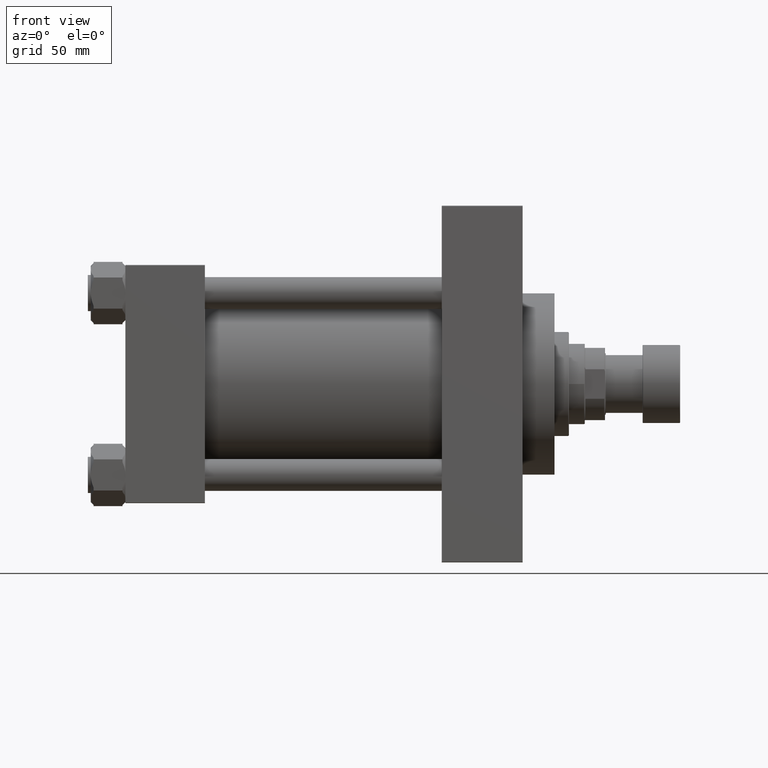
[diagram: clean part render]
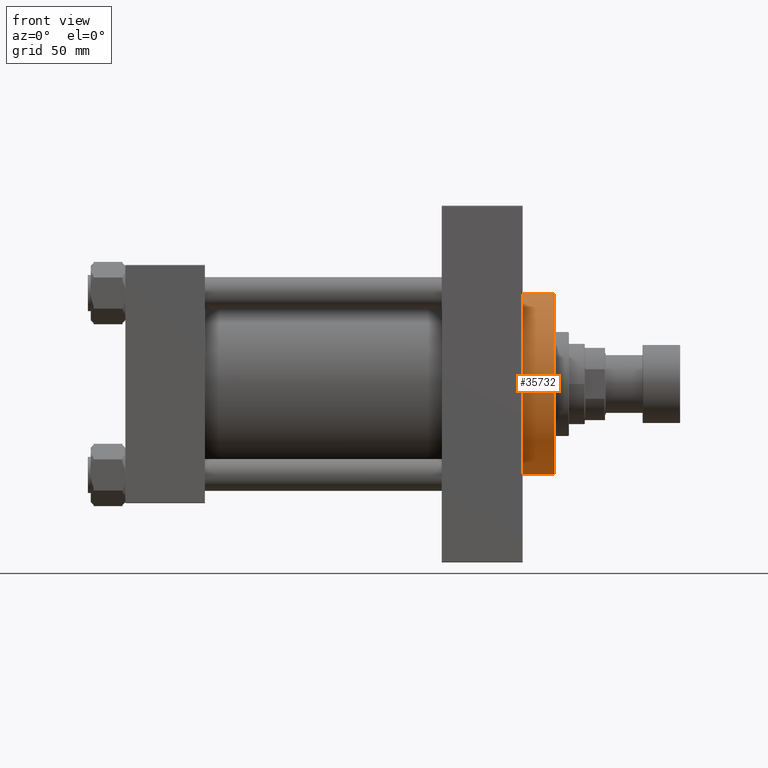
[diagram: same view with one face highlighted and labeled with its STEP entity id]
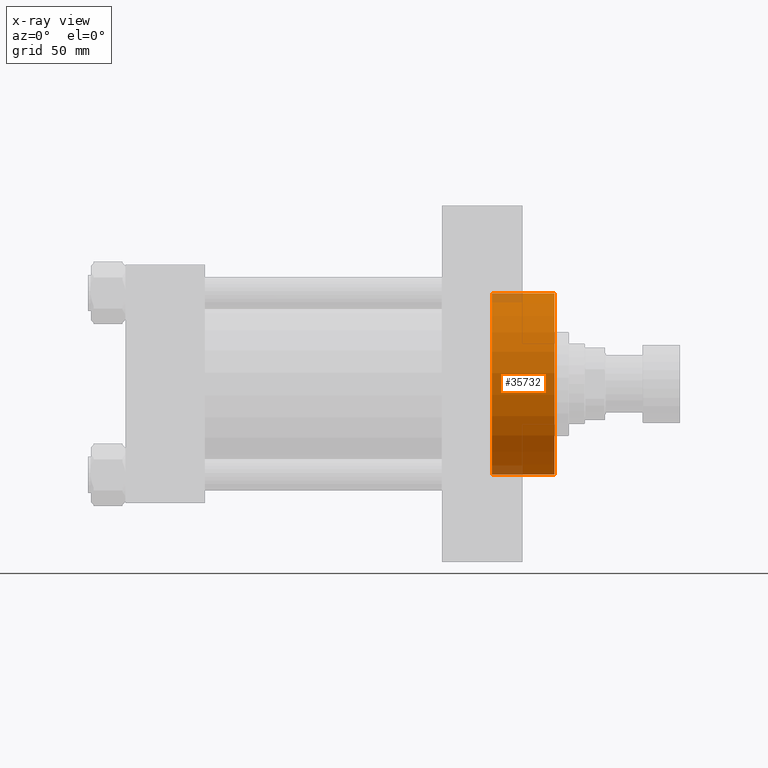
[diagram: x-ray of the same camera — body ghosted, the highlighted face saturated]
A machine part, front view. The second image highlights one B-rep face of the part: STEP entity #35732.
The next image is the same camera in x-ray: the body ghosted, the highlighted face saturated — about 5% of this face is hidden behind the body in this view.
In plain terms, the highlighted cylindrical surface (partial cylindrical patch) has radius 62.75 mm, axis along (-1, -0, 0).
Its self-contained STEP definition (entity closure, byte-faithful):
#2897 = VECTOR ( 'NONE', #15566, 1000.000000000000000 ) ;
#2991 = EDGE_CURVE ( 'NONE', #18063, #16553, #9720, .T. ) ;
#3689 = DIRECTION ( 'NONE',  ( 0.000000000000000000, 0.000000000000000000, 1.000000000000000000 ) ) ;
#4437 = VERTEX_POINT ( 'NONE', #39517 ) ;
#6716 = EDGE_LOOP ( 'NONE', ( #22117, #27790, #34641, #46777 ) ) ;
#9574 = DIRECTION ( 'NONE',  ( -1.000000000000000000, 0.000000000000000000, 0.000000000000000000 ) ) ;
#9720 = CIRCLE ( 'NONE', #40048, 62.75000000000000000 ) ;
#9830 = VERTEX_POINT ( 'NONE', #45409 ) ;
#10445 = DIRECTION ( 'NONE',  ( 0.000000000000000000, 0.000000000000000000, 1.000000000000000000 ) ) ;
#12680 = EDGE_CURVE ( 'NONE', #18063, #9830, #41615, .T. ) ;
#13712 = DIRECTION ( 'NONE',  ( -0.000000000000000000, -0.000000000000000000, -1.000000000000000000 ) ) ;
#14104 = CARTESIAN_POINT ( 'NONE',  ( -62.75000000000000000, 0.000000000000000000, 43.25999999999999801 ) ) ;
#14653 = CARTESIAN_POINT ( 'NONE',  ( 0.000000000000000000, 0.000000000000000000, 0.000000000000000000 ) ) ;
#15566 = DIRECTION ( 'NONE',  ( -0.000000000000000000, -0.000000000000000000, -1.000000000000000000 ) ) ;
#16553 = VERTEX_POINT ( 'NONE', #23264 ) ;
#18063 = VERTEX_POINT ( 'NONE', #14104 ) ;
#18547 = DIRECTION ( 'NONE',  ( 1.000000000000000000, 0.000000000000000000, 0.000000000000000000 ) ) ;
#19353 = FACE_OUTER_BOUND ( 'NONE', #6716, .T. ) ;
#20359 = LINE ( 'NONE', #46395, #47722 ) ;
#22117 = ORIENTED_EDGE ( 'NONE', *, *, #33623, .F. ) ;
#23264 = CARTESIAN_POINT ( 'NONE',  ( 62.75000000000000000, 7.684658664649641591E-15, 43.25999999999999801 ) ) ;
#25088 = CIRCLE ( 'NONE', #34397, 62.75000000000000000 ) ;
#25306 = DIRECTION ( 'NONE',  ( 1.000000000000000000, 0.000000000000000000, 0.000000000000000000 ) ) ;
#27545 = AXIS2_PLACEMENT_3D ( 'NONE', #45387, #13712, #9574 ) ;
#27790 = ORIENTED_EDGE ( 'NONE', *, *, #2991, .F. ) ;
#30167 = CARTESIAN_POINT ( 'NONE',  ( -62.75000000000000000, 0.000000000000000000, 43.25999999999999801 ) ) ;
#30539 = CYLINDRICAL_SURFACE ( 'NONE', #27545, 62.75000000000000000 ) ;
#31043 = EDGE_CURVE ( 'NONE', #9830, #4437, #25088, .T. ) ;
#33623 = EDGE_CURVE ( 'NONE', #16553, #4437, #20359, .T. ) ;
#34397 = AXIS2_PLACEMENT_3D ( 'NONE', #14653, #3689, #18547 ) ;
#34641 = ORIENTED_EDGE ( 'NONE', *, *, #12680, .T. ) ;
#35732 = ADVANCED_FACE ( 'NONE', ( #19353 ), #30539, .T. ) ;
#38857 = DIRECTION ( 'NONE',  ( -0.000000000000000000, -0.000000000000000000, -1.000000000000000000 ) ) ;
#39517 = CARTESIAN_POINT ( 'NONE',  ( 62.75000000000000000, 7.684658664649641591E-15, 0.000000000000000000 ) ) ;
#40048 = AXIS2_PLACEMENT_3D ( 'NONE', #43322, #10445, #25306 ) ;
#41615 = LINE ( 'NONE', #30167, #2897 ) ;
#43322 = CARTESIAN_POINT ( 'NONE',  ( 0.000000000000000000, 0.000000000000000000, 43.25999999999999801 ) ) ;
#45387 = CARTESIAN_POINT ( 'NONE',  ( 0.000000000000000000, 0.000000000000000000, 43.25999999999999801 ) ) ;
#45409 = CARTESIAN_POINT ( 'NONE',  ( -62.75000000000000000, 0.000000000000000000, 0.000000000000000000 ) ) ;
#46395 = CARTESIAN_POINT ( 'NONE',  ( 62.75000000000000000, 7.684658664649641591E-15, 43.25999999999999801 ) ) ;
#46777 = ORIENTED_EDGE ( 'NONE', *, *, #31043, .T. ) ;
#47722 = VECTOR ( 'NONE', #38857, 1000.000000000000000 ) ;